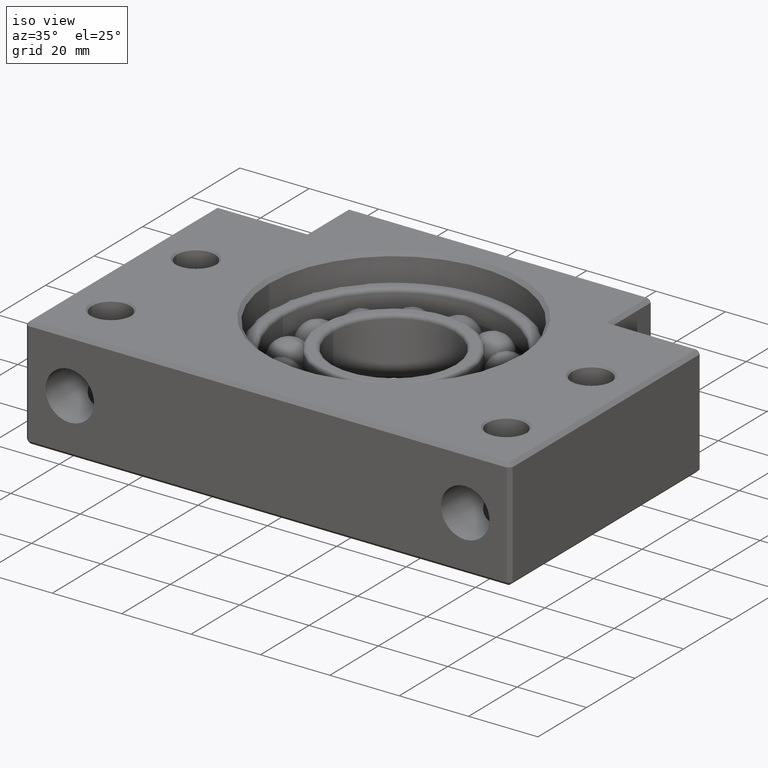
[diagram: clean part render]
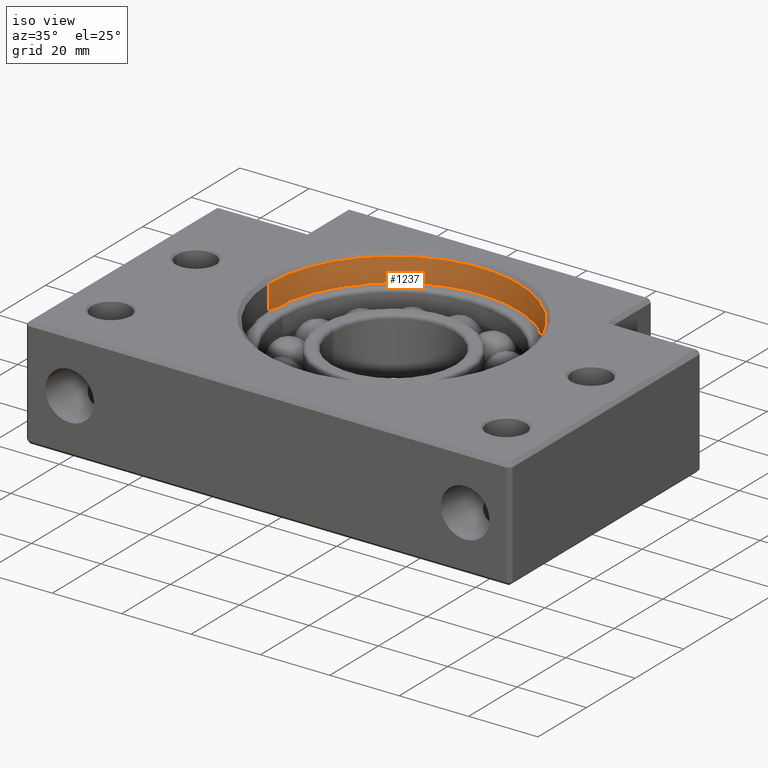
[diagram: same view with one face highlighted and labeled with its STEP entity id]
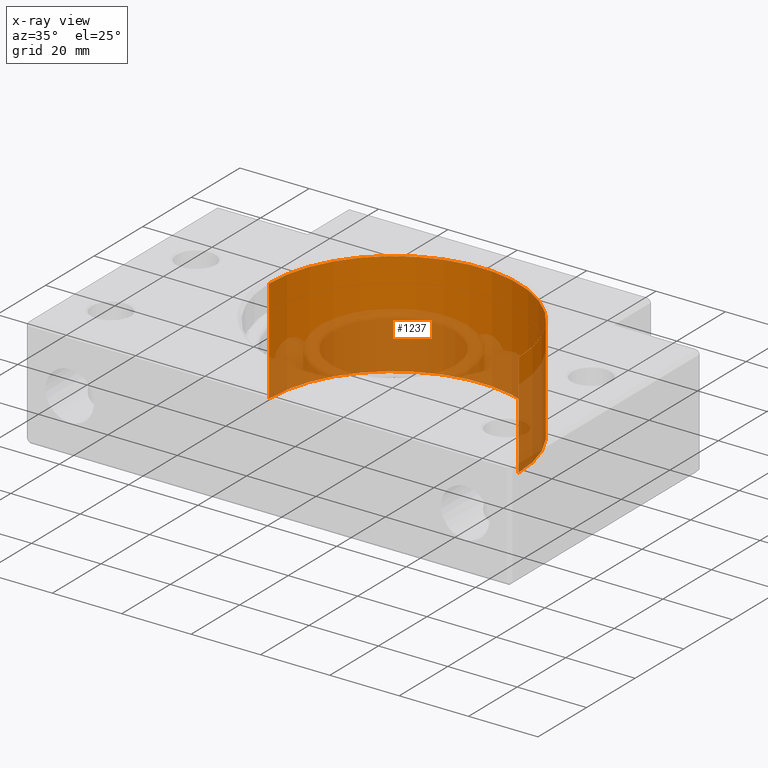
[diagram: x-ray of the same camera — body ghosted, the highlighted face saturated]
A machine part, iso view. The second image highlights one B-rep face of the part: STEP entity #1237.
The next image is the same camera in x-ray: the body ghosted, the highlighted face saturated — about 49% of this face is hidden behind the body in this view.
In plain terms, the highlighted cylindrical surface (partial cylindrical patch) has radius 36 mm, axis along (-0, -0, -1).
Its self-contained STEP definition (entity closure, byte-faithful):
#13 = DIRECTION ( 'NONE',  ( -0.0000000000000000000, -0.0000000000000000000, -1.000000000000000000 ) ) ;
#14 = VECTOR ( 'NONE', #13, 1000.000000000000000 ) ;
#15 = CARTESIAN_POINT ( 'NONE',  ( -35.99999999999998600, 51.99999999999999300, 16.00000000000000000 ) ) ;
#167 = DIRECTION ( 'NONE',  ( -0.0000000000000000000, -0.0000000000000000000, -1.000000000000000000 ) ) ;
#168 = VECTOR ( 'NONE', #167, 1000.000000000000000 ) ;
#169 = CARTESIAN_POINT ( 'NONE',  ( 36.00000000000001400, 52.00000000000000000, 16.00000000000000000 ) ) ;
#170 = LINE ( 'NONE', #169, #168 ) ;
#1034 = VERTEX_POINT ( 'NONE', #3115 ) ;
#1037 = VERTEX_POINT ( 'NONE', #3109 ) ;
#1231 = ORIENTED_EDGE ( 'NONE', *, *, #1232, .T. ) ;
#1232 = EDGE_CURVE ( 'NONE', #1037, #1034, #3691, .T. ) ;
#1233 = ORIENTED_EDGE ( 'NONE', *, *, #1881, .T. ) ;
#1234 = EDGE_CURVE ( 'NONE', #1705, #1706, #3685, .T. ) ;
#1235 = ORIENTED_EDGE ( 'NONE', *, *, #1966, .F. ) ;
#1236 = ORIENTED_EDGE ( 'NONE', *, *, #1234, .T. ) ;
#1237 = ADVANCED_FACE ( 'NONE', ( #3680 ), #3679, .F. ) ;
#1245 = EDGE_LOOP ( 'NONE', ( #1235, #1236, #1233, #1231 ) ) ;
#1705 = VERTEX_POINT ( 'NONE', #4569 ) ;
#1706 = VERTEX_POINT ( 'NONE', #4568 ) ;
#1881 = EDGE_CURVE ( 'NONE', #1706, #1037, #4992, .T. ) ;
#1966 = EDGE_CURVE ( 'NONE', #1705, #1034, #170, .T. ) ;
#3109 = CARTESIAN_POINT ( 'NONE',  ( -35.99999999999998600, 51.99999999999999300, -15.00000000000001400 ) ) ;
#3115 = CARTESIAN_POINT ( 'NONE',  ( 36.00000000000001400, 52.00000000000000000, -15.00000000000001400 ) ) ;
#3674 = DIRECTION ( 'NONE',  ( -1.000000000000000000, 0.0000000000000000000, 0.0000000000000000000 ) ) ;
#3675 = DIRECTION ( 'NONE',  ( -0.0000000000000000000, -0.0000000000000000000, -1.000000000000000000 ) ) ;
#3676 = CARTESIAN_POINT ( 'NONE',  ( 1.075587020995766200E-014, 51.99999999999999300, 16.00000000000000000 ) ) ;
#3677 = AXIS2_PLACEMENT_3D ( 'NONE', #3676, #3675, #3674 ) ;
#3679 = CYLINDRICAL_SURFACE ( 'NONE', #3677, 36.00000000000000000 ) ;
#3680 = FACE_OUTER_BOUND ( 'NONE', #1245, .T. ) ;
#3681 = DIRECTION ( 'NONE',  ( 1.000000000000000000, 0.0000000000000000000, 0.0000000000000000000 ) ) ;
#3682 = DIRECTION ( 'NONE',  ( 0.0000000000000000000, 0.0000000000000000000, 1.000000000000000000 ) ) ;
#3683 = CARTESIAN_POINT ( 'NONE',  ( 1.075587020995766200E-014, 51.99999999999999300, 14.99999999999998600 ) ) ;
#3684 = AXIS2_PLACEMENT_3D ( 'NONE', #3683, #3682, #3681 ) ;
#3685 = CIRCLE ( 'NONE', #3684, 36.00000000000000000 ) ;
#3686 = DIRECTION ( 'NONE',  ( 1.000000000000000000, 0.0000000000000000000, 0.0000000000000000000 ) ) ;
#3688 = DIRECTION ( 'NONE',  ( -0.0000000000000000000, -0.0000000000000000000, -1.000000000000000000 ) ) ;
#3689 = CARTESIAN_POINT ( 'NONE',  ( 1.075587020995766200E-014, 51.99999999999999300, -15.00000000000001400 ) ) ;
#3690 = AXIS2_PLACEMENT_3D ( 'NONE', #3689, #3688, #3686 ) ;
#3691 = CIRCLE ( 'NONE', #3690, 36.00000000000000000 ) ;
#4568 = CARTESIAN_POINT ( 'NONE',  ( -35.99999999999998600, 51.99999999999999300, 14.99999999999998600 ) ) ;
#4569 = CARTESIAN_POINT ( 'NONE',  ( 36.00000000000001400, 52.00000000000000000, 14.99999999999998600 ) ) ;
#4992 = LINE ( 'NONE', #15, #14 ) ;